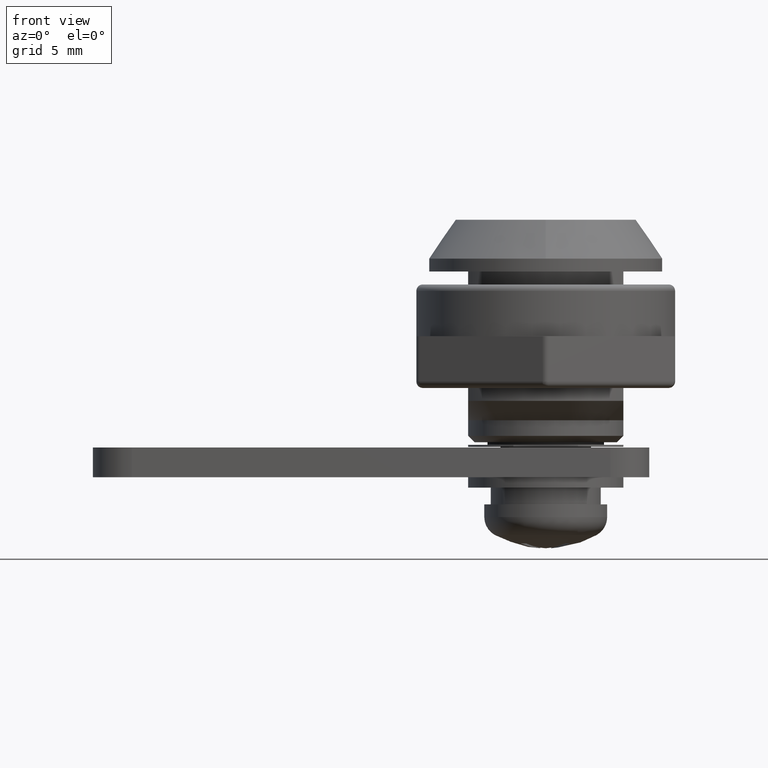
[diagram: clean part render]
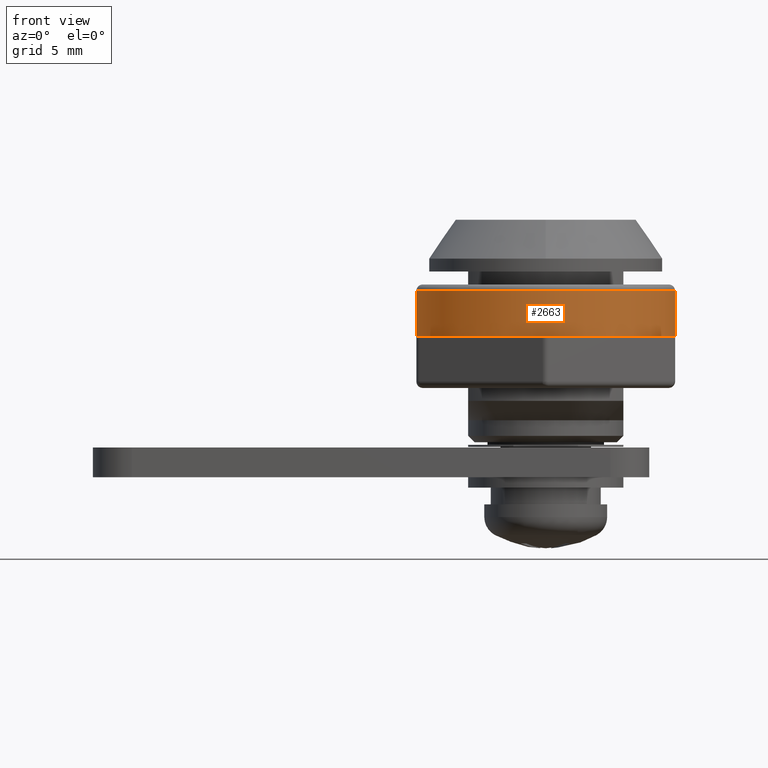
[diagram: same view with one face highlighted and labeled with its STEP entity id]
A machine part, front view. The second image highlights one B-rep face of the part: STEP entity #2663.
In plain terms, the highlighted cylindrical surface (partial cylindrical patch) has radius 10 mm, axis along (-0, -0, -1).
Its self-contained STEP definition (entity closure, byte-faithful):
#25 = DIRECTION ( 'NONE',  ( 1.000000000000000000, 0.0000000000000000000, 0.0000000000000000000 ) ) ;
#60 = DIRECTION ( 'NONE',  ( 0.0000000000000000000, 0.0000000000000000000, 1.000000000000000000 ) ) ;
#142 = ORIENTED_EDGE ( 'NONE', *, *, #2518, .T. ) ;
#487 = EDGE_CURVE ( 'NONE', #4751, #2748, #4589, .T. ) ;
#493 = DIRECTION ( 'NONE',  ( -0.0000000000000000000, -0.0000000000000000000, -1.000000000000000000 ) ) ;
#530 = CARTESIAN_POINT ( 'NONE',  ( 0.0000000000000000000, 0.0000000000000000000, 0.0000000000000000000 ) ) ;
#736 = DIRECTION ( 'NONE',  ( -0.0000000000000000000, -0.0000000000000000000, -1.000000000000000000 ) ) ;
#922 = FACE_OUTER_BOUND ( 'NONE', #2174, .T. ) ;
#945 = AXIS2_PLACEMENT_3D ( 'NONE', #4786, #2193, #5236 ) ;
#968 = DIRECTION ( 'NONE',  ( 1.000000000000000000, 0.0000000000000000000, 0.0000000000000000000 ) ) ;
#1115 = CARTESIAN_POINT ( 'NONE',  ( 10.00000000000000000, 1.224646799147353300E-015, 3.500000000000000000 ) ) ;
#1282 = CARTESIAN_POINT ( 'NONE',  ( 10.00000000000000000, 1.224646799147353300E-015, 4.000000000000000000 ) ) ;
#1428 = ORIENTED_EDGE ( 'NONE', *, *, #4308, .T. ) ;
#1574 = CIRCLE ( 'NONE', #4912, 10.00000000000000000 ) ;
#1744 = ORIENTED_EDGE ( 'NONE', *, *, #3591, .T. ) ;
#1796 = CIRCLE ( 'NONE', #945, 10.00000000000000000 ) ;
#2063 = DIRECTION ( 'NONE',  ( -0.0000000000000000000, -0.0000000000000000000, -1.000000000000000000 ) ) ;
#2174 = EDGE_LOOP ( 'NONE', ( #4184, #2907, #4081, #1428, #142, #1744 ) ) ;
#2191 = VERTEX_POINT ( 'NONE', #3818 ) ;
#2193 = DIRECTION ( 'NONE',  ( -0.0000000000000000000, -0.0000000000000000000, -1.000000000000000000 ) ) ;
#2373 = AXIS2_PLACEMENT_3D ( 'NONE', #530, #3574, #968 ) ;
#2465 = LINE ( 'NONE', #4645, #4782 ) ;
#2518 = EDGE_CURVE ( 'NONE', #5438, #2191, #2758, .T. ) ;
#2623 = DIRECTION ( 'NONE',  ( 0.0000000000000000000, 0.0000000000000000000, 1.000000000000000000 ) ) ;
#2660 = CARTESIAN_POINT ( 'NONE',  ( 0.0000000000000000000, 0.0000000000000000000, 0.0000000000000000000 ) ) ;
#2663 = ADVANCED_FACE ( 'NONE', ( #922 ), #3092, .T. ) ;
#2748 = VERTEX_POINT ( 'NONE', #2961 ) ;
#2758 = CIRCLE ( 'NONE', #2373, 10.00000000000000000 ) ;
#2907 = ORIENTED_EDGE ( 'NONE', *, *, #3246, .T. ) ;
#2961 = CARTESIAN_POINT ( 'NONE',  ( 10.00000000000000400, 0.0000000000000000000, 0.0000000000000000000 ) ) ;
#3069 = EDGE_CURVE ( 'NONE', #3316, #4604, #2465, .T. ) ;
#3092 = CYLINDRICAL_SURFACE ( 'NONE', #5579, 10.00000000000000000 ) ;
#3099 = DIRECTION ( 'NONE',  ( 1.000000000000000000, 0.0000000000000000000, 0.0000000000000000000 ) ) ;
#3246 = EDGE_CURVE ( 'NONE', #4751, #3316, #1796, .T. ) ;
#3316 = VERTEX_POINT ( 'NONE', #3680 ) ;
#3574 = DIRECTION ( 'NONE',  ( 0.0000000000000000000, 0.0000000000000000000, 1.000000000000000000 ) ) ;
#3591 = EDGE_CURVE ( 'NONE', #2191, #2748, #1574, .T. ) ;
#3662 = CARTESIAN_POINT ( 'NONE',  ( -5.000000000000014200, -8.660254037844387300, 0.0000000000000000000 ) ) ;
#3680 = CARTESIAN_POINT ( 'NONE',  ( -10.00000000000000000, 0.0000000000000000000, 3.500000000000000000 ) ) ;
#3818 = CARTESIAN_POINT ( 'NONE',  ( 5.000000000000013300, -8.660254037844390900, 0.0000000000000000000 ) ) ;
#4081 = ORIENTED_EDGE ( 'NONE', *, *, #3069, .T. ) ;
#4184 = ORIENTED_EDGE ( 'NONE', *, *, #487, .F. ) ;
#4199 = DIRECTION ( 'NONE',  ( -1.000000000000000000, 0.0000000000000000000, 0.0000000000000000000 ) ) ;
#4308 = EDGE_CURVE ( 'NONE', #4604, #5438, #4465, .T. ) ;
#4465 = CIRCLE ( 'NONE', #5162, 10.00000000000000000 ) ;
#4589 = LINE ( 'NONE', #1282, #5625 ) ;
#4604 = VERTEX_POINT ( 'NONE', #4930 ) ;
#4641 = CARTESIAN_POINT ( 'NONE',  ( 0.0000000000000000000, 0.0000000000000000000, 4.000000000000000000 ) ) ;
#4645 = CARTESIAN_POINT ( 'NONE',  ( -10.00000000000000000, 0.0000000000000000000, 4.000000000000000000 ) ) ;
#4751 = VERTEX_POINT ( 'NONE', #1115 ) ;
#4782 = VECTOR ( 'NONE', #2063, 1000.000000000000000 ) ;
#4786 = CARTESIAN_POINT ( 'NONE',  ( 0.0000000000000000000, 0.0000000000000000000, 3.500000000000000000 ) ) ;
#4912 = AXIS2_PLACEMENT_3D ( 'NONE', #5225, #2623, #25 ) ;
#4930 = CARTESIAN_POINT ( 'NONE',  ( -9.999999999999994700, 0.0000000000000000000, 0.0000000000000000000 ) ) ;
#5162 = AXIS2_PLACEMENT_3D ( 'NONE', #2660, #60, #3099 ) ;
#5225 = CARTESIAN_POINT ( 'NONE',  ( 0.0000000000000000000, 0.0000000000000000000, 0.0000000000000000000 ) ) ;
#5236 = DIRECTION ( 'NONE',  ( 1.000000000000000000, 0.0000000000000000000, 0.0000000000000000000 ) ) ;
#5438 = VERTEX_POINT ( 'NONE', #3662 ) ;
#5579 = AXIS2_PLACEMENT_3D ( 'NONE', #4641, #736, #4199 ) ;
#5625 = VECTOR ( 'NONE', #493, 1000.000000000000000 ) ;